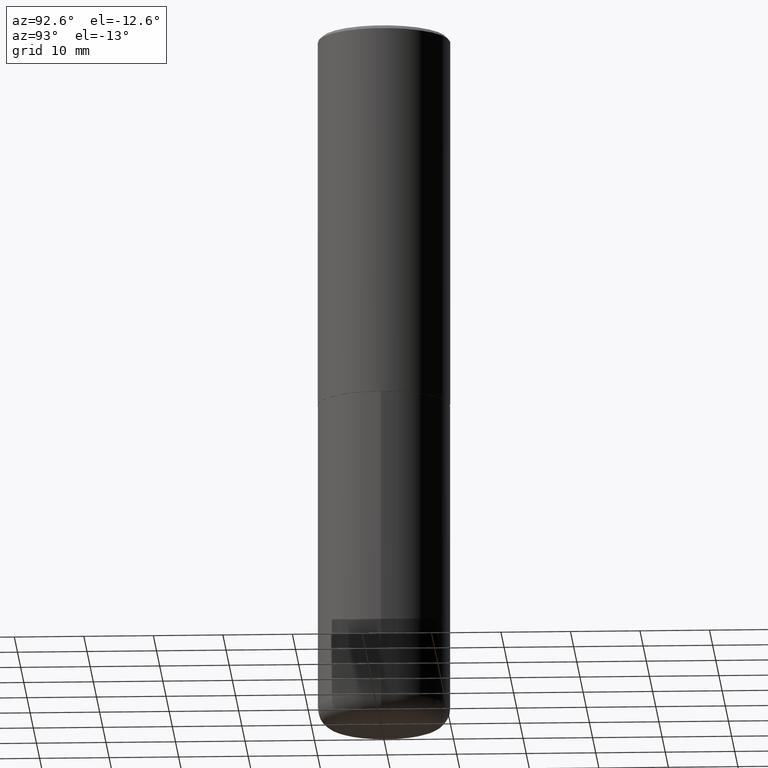
[diagram: clean part render]
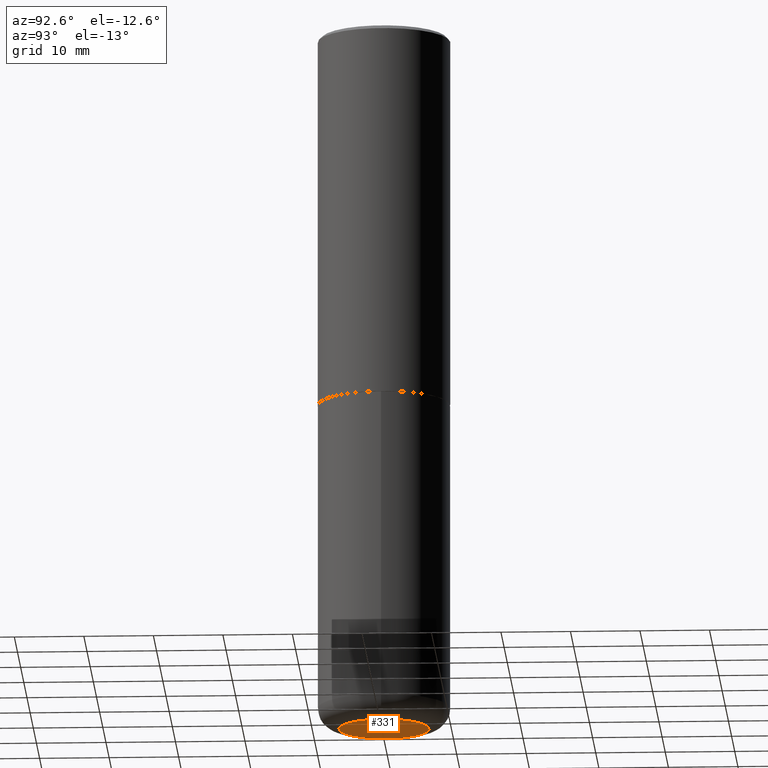
[diagram: same view with one face highlighted and labeled with its STEP entity id]
A machine part, auxiliary view. The second image highlights one B-rep face of the part: STEP entity #331.
In plain terms, the highlighted planar face has unit normal (0, -0, -1).
Its self-contained STEP definition (entity closure, byte-faithful):
#2 = EDGE_CURVE ( 'NONE', #69, #9, #322, .T. ) ;
#8 = CARTESIAN_POINT ( 'NONE',  ( 9.781875224740547508E-29, -1.396592535537258391E-14, -4.000000000000000888 ) ) ;
#9 = VERTEX_POINT ( 'NONE', #118 ) ;
#26 = FACE_OUTER_BOUND ( 'NONE', #112, .T. ) ;
#29 = DIRECTION ( 'NONE',  ( 2.438088387897960049E-29, -3.491481338843145188E-15, -1.000000000000000000 ) ) ;
#69 = VERTEX_POINT ( 'NONE', #139 ) ;
#79 = CIRCLE ( 'NONE', #111, 0.2550000000000000044 ) ;
#86 = DIRECTION ( 'NONE',  ( -2.445468806185136597E-29, 3.491481338843145583E-15, 1.000000000000000000 ) ) ;
#111 = AXIS2_PLACEMENT_3D ( 'NONE', #385, #86, #251 ) ;
#112 = EDGE_LOOP ( 'NONE', ( #393, #394 ) ) ;
#113 = PLANE ( 'NONE',  #309 ) ;
#118 = CARTESIAN_POINT ( 'NONE',  ( 0.2550000000000000044, -1.574658083818258381E-14, -4.000000000000000888 ) ) ;
#135 = EDGE_CURVE ( 'NONE', #9, #69, #79, .T. ) ;
#139 = CARTESIAN_POINT ( 'NONE',  ( -0.2550000000000000044, -1.151822685739767881E-14, -4.000000000000000888 ) ) ;
#151 = DIRECTION ( 'NONE',  ( -1.000000000000000000, 6.982962677686265922E-15, -4.876176775795935793E-29 ) ) ;
#221 = DIRECTION ( 'NONE',  ( 1.000000000000000000, -6.982962677686267499E-15, 0.000000000000000000 ) ) ;
#251 = DIRECTION ( 'NONE',  ( 1.000000000000000000, -6.982962677686267499E-15, 0.000000000000000000 ) ) ;
#309 = AXIS2_PLACEMENT_3D ( 'NONE', #376, #29, #151 ) ;
#322 = CIRCLE ( 'NONE', #416, 0.2550000000000000044 ) ;
#331 = ADVANCED_FACE ( 'NONE', ( #26 ), #113, .T. ) ;
#376 = CARTESIAN_POINT ( 'NONE',  ( 3.797124611134382385E-29, -2.253642886490752288E-14, -4.000000000000000000 ) ) ;
#385 = CARTESIAN_POINT ( 'NONE',  ( 9.781875224740547508E-29, -1.396592535537258391E-14, -4.000000000000000888 ) ) ;
#392 = DIRECTION ( 'NONE',  ( -2.445468806185136597E-29, 3.491481338843145583E-15, 1.000000000000000000 ) ) ;
#393 = ORIENTED_EDGE ( 'NONE', *, *, #135, .F. ) ;
#394 = ORIENTED_EDGE ( 'NONE', *, *, #2, .F. ) ;
#416 = AXIS2_PLACEMENT_3D ( 'NONE', #8, #392, #221 ) ;